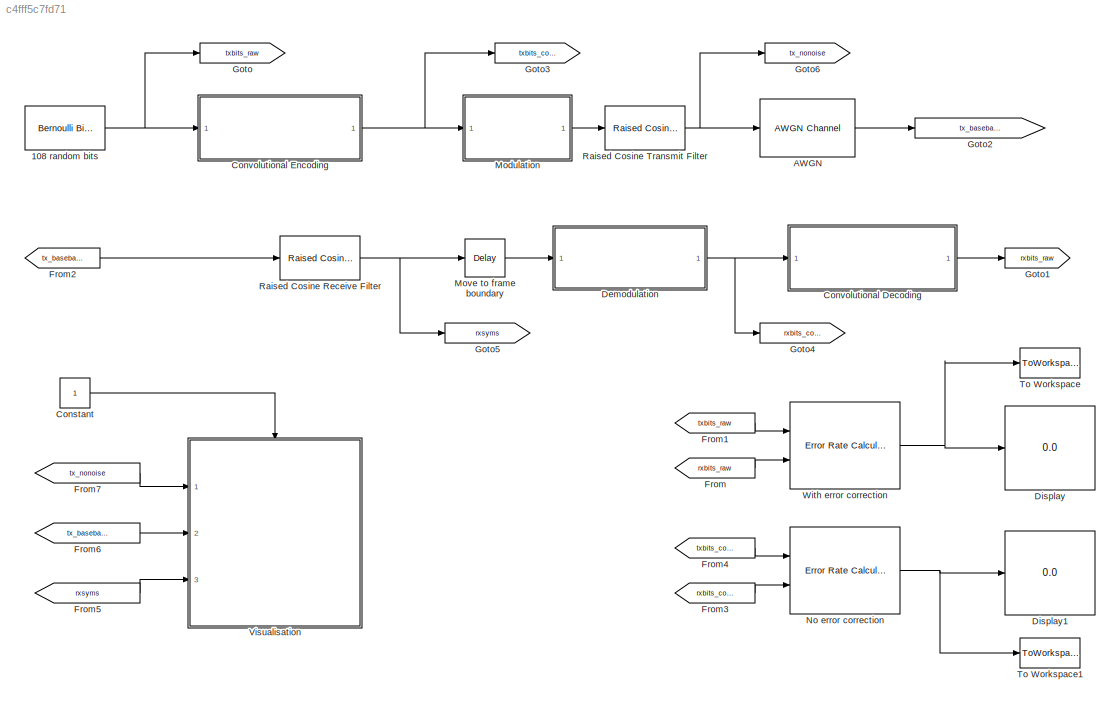
MODEL mdl_c4fff5c7fd71
KIND model
CONFIG AbsTol = auto
CONFIG EnableMultiTasking = off
CONFIG FixedStep = auto
CONFIG MaxStep = auto
CONFIG MinStep = auto
CONFIG RelTol = 1e-3
CONFIG SampleTimeConstraint = Unconstrained
CONFIG SolverName = FixedStepDiscrete
CONFIG StartTime = 0.0
CONFIG StopTime = 10
BLOCK [Reference] 108 random bits  REF=commrandsrc2/Bernoulli Binary
Generator
  Ports = [0, 1]
  SourceBlock = commrandsrc2/Bernoulli Binary\nGenerator
  SourceProductBaseCode = CM
  SourceType = Bernoulli Binary Generator
BLOCK [Reference] AWGN  REF=commchan3/AWGN
Channel
  Ports = [1, 1]
  SourceBlock = commchan3/AWGN\nChannel
  SourceProductBaseCode = CM
  SourceType = AWGN Channel
  UserDataPersistent = on
BLOCK [Constant] Constant
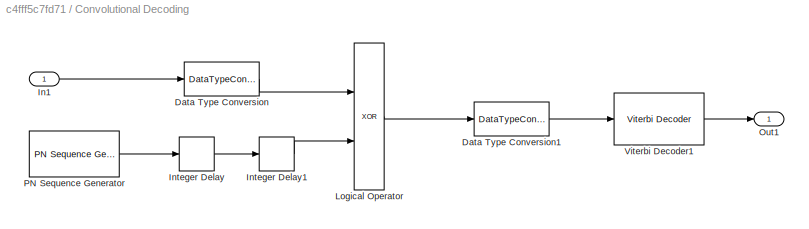
BLOCK [SubSystem] Convolutional Decoding
  Ports = [1, 1]
  RequestExecContextInheritance = off
BLOCK [DataTypeConversion] Convolutional Decoding/Data Type Conversion
  OutDataTypeStr = boolean
  RndMeth = Floor
  SaturateOnIntegerOverflow = off
BLOCK [DataTypeConversion] Convolutional Decoding/Data Type Conversion1
  OutDataTypeStr = double
  RndMeth = Floor
  SaturateOnIntegerOverflow = off
BLOCK [Inport] Convolutional Decoding/In1
BLOCK [Delay] Convolutional Decoding/Integer Delay
  DelayLength = 215
  InitialCondition = 0
  InputPortMap = u0
  Ports = [1, 1]
  UserDataPersistent = on
BLOCK [Delay] Convolutional Decoding/Integer Delay1
  DelayLength = 1
  InitialCondition = 0
  InputPortMap = u0
  Ports = [1, 1]
  UserDataPersistent = on
BLOCK [Logic] Convolutional Decoding/Logical Operator
  AllPortsSameDT = off
  Operator = XOR
  OutDataTypeStr = boolean
  Ports = [2, 1]
BLOCK [Outport] Convolutional Decoding/Out1
BLOCK [Reference] Convolutional Decoding/PN Sequence Generator  REF=commseqgen3/PN Sequence
Generator
  Ports = [0, 1]
  SourceBlock = commseqgen3/PN Sequence\nGenerator
  SourceProductBaseCode = CM
  SourceType = PN Sequence Generator
BLOCK [Reference] Convolutional Decoding/Viterbi Decoder1  REF=commcnvcod2/Viterbi Decoder
  Ports = [1, 1]
  SourceBlock = commcnvcod2/Viterbi Decoder
  SourceProductBaseCode = CM
  SourceType = Viterbi Decoder
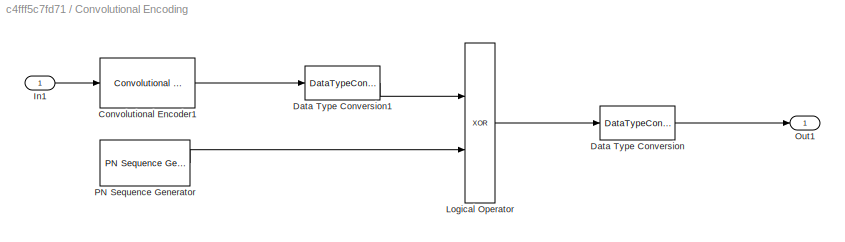
BLOCK [SubSystem] Convolutional Encoding
  Ports = [1, 1]
  RequestExecContextInheritance = off
BLOCK [Reference] Convolutional Encoding/Convolutional Encoder1  REF=commcnvcod2/Convolutional
Encoder
  Ports = [1, 1]
  SourceBlock = commcnvcod2/Convolutional\nEncoder
  SourceProductBaseCode = CM
  SourceType = Convolutional Encoder
BLOCK [DataTypeConversion] Convolutional Encoding/Data Type Conversion
  OutDataTypeStr = double
  RndMeth = Floor
  SaturateOnIntegerOverflow = off
BLOCK [DataTypeConversion] Convolutional Encoding/Data Type Conversion1
  OutDataTypeStr = boolean
  RndMeth = Floor
  SaturateOnIntegerOverflow = off
BLOCK [Inport] Convolutional Encoding/In1
BLOCK [Logic] Convolutional Encoding/Logical Operator
  AllPortsSameDT = off
  Operator = XOR
  OutDataTypeStr = boolean
  Ports = [2, 1]
BLOCK [Outport] Convolutional Encoding/Out1
BLOCK [Reference] Convolutional Encoding/PN Sequence Generator  REF=commseqgen3/PN Sequence
Generator
  Ports = [0, 1]
  SourceBlock = commseqgen3/PN Sequence\nGenerator
  SourceProductBaseCode = CM
  SourceType = PN Sequence Generator
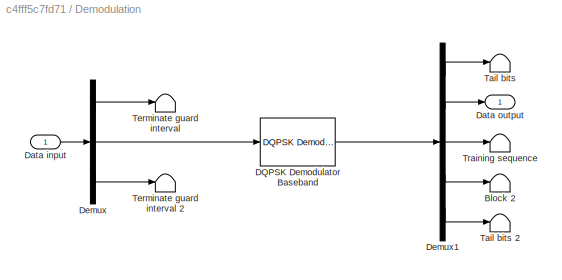
BLOCK [SubSystem] Demodulation
  Ports = [1, 1]
  RequestExecContextInheritance = off
BLOCK [Terminator] Demodulation/Block 2
BLOCK [Reference] Demodulation/DQPSK Demodulator Baseband  REF=commdigbbndpm3/DQPSK
Demodulator
Baseband
  Ports = [1, 1]
  SourceBlock = commdigbbndpm3/DQPSK\nDemodulator\nBaseband
  SourceProductBaseCode = CM
  SourceType = DQPSK Demodulator Baseband
BLOCK [Inport] Demodulation/Data input
BLOCK [Outport] Demodulation/Data output
BLOCK [Demux] Demodulation/Demux
  Outputs = [17 231 7]
  Ports = [1, 3]
BLOCK [Demux] Demodulation/Demux1
  Outputs = [4 216 22 216 4]
  Ports = [1, 5]
BLOCK [Terminator] Demodulation/Tail bits
BLOCK [Terminator] Demodulation/Tail bits 2
BLOCK [Terminator] Demodulation/Terminate guard interval
BLOCK [Terminator] Demodulation/Terminate guard interval 2
BLOCK [Terminator] Demodulation/Training sequence
BLOCK [Display] Display
  Decimation = 1
  Ports = [1]
BLOCK [Display] Display1
  Decimation = 1
  Ports = [1]
BLOCK [From] From
  GotoTag = rxbits_raw
BLOCK [From] From1
  GotoTag = txbits_raw
BLOCK [From] From2
  GotoTag = tx_baseband
BLOCK [From] From3
  GotoTag = rxbits_conv
BLOCK [From] From4
  GotoTag = txbits_conv
BLOCK [From] From5
  GotoTag = rxsyms
BLOCK [From] From6
  GotoTag = tx_baseband
BLOCK [From] From7
  GotoTag = tx_nonoise
BLOCK [Goto] Goto
  GotoTag = txbits_raw
BLOCK [Goto] Goto1
  GotoTag = rxbits_raw
BLOCK [Goto] Goto2
  GotoTag = tx_baseband
BLOCK [Goto] Goto3
  GotoTag = txbits_conv
BLOCK [Goto] Goto4
  GotoTag = rxbits_conv
BLOCK [Goto] Goto5
  GotoTag = rxsyms
BLOCK [Goto] Goto6
  GotoTag = tx_nonoise
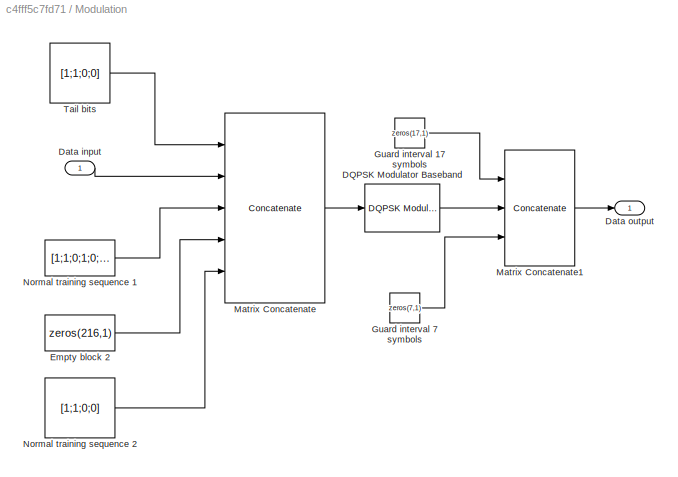
BLOCK [SubSystem] Modulation
  Ports = [1, 1]
  RequestExecContextInheritance = off
BLOCK [Reference] Modulation/DQPSK Modulator Baseband  REF=commdigbbndpm3/DQPSK
Modulator
Baseband
  Ports = [1, 1]
  SourceBlock = commdigbbndpm3/DQPSK\nModulator\nBaseband
  SourceProductBaseCode = CM
  SourceType = DQPSK Modulator Baseband
BLOCK [Inport] Modulation/Data input
BLOCK [Outport] Modulation/Data output
BLOCK [Constant] Modulation/Empty block 2
  SamplingMode = Frame based
  Value = zeros(216,1)
  VectorParams1D = off
BLOCK [Constant] Modulation/Guard interval 17 symbols
  SamplingMode = Frame based
  Value = zeros(17,1)
  VectorParams1D = off
BLOCK [Constant] Modulation/Guard interval 7 symbols
  SamplingMode = Frame based
  Value = zeros(7,1)
  VectorParams1D = off
BLOCK [Concatenate] Modulation/Matrix Concatenate
  Mode = Multidimensional array
  NumInputs = 5
  Ports = [5, 1]
BLOCK [Concatenate] Modulation/Matrix Concatenate1
  Mode = Multidimensional array
  NumInputs = 3
  Ports = [3, 1]
BLOCK [Constant] Modulation/Normal training sequence 1
  SamplingMode = Frame based
  Value = [1;1;0;1;0;0;0;0;1;1;1;0;1;0;0;1;1;1;0;1;0;0]
  VectorParams1D = off
BLOCK [Constant] Modulation/Normal training sequence 2
  SamplingMode = Frame based
  Value = [1;1;0;0]
  VectorParams1D = off
BLOCK [Constant] Modulation/Tail bits
  SamplingMode = Frame based
  Value = [1;1;0;0]
  VectorParams1D = off
BLOCK [Delay] Move to frame boundary
  DelayLength = 255-8
  InputPortMap = u0
  Ports = [1, 1]
  UserDataPersistent = on
BLOCK [Reference] No error correction  REF=commsink2/Error Rate
Calculation
  Ports = [2, 1]
  SourceBlock = commsink2/Error Rate\nCalculation
  SourceProductBaseCode = CM
  SourceType = Error Rate Calculation
BLOCK [Reference] Raised Cosine Receive Filter  REF=commfilt2/Raised Cosine
Receive Filter
  Ports = [1, 1]
  SourceBlock = commfilt2/Raised Cosine\nReceive Filter
  SourceProductBaseCode = CM
  SourceType = Raised Cosine Receive Filter
  UserDataPersistent = on
BLOCK [Reference] Raised Cosine Transmit Filter  REF=commfilt2/Raised Cosine
Transmit Filter
  Ports = [1, 1]
  SourceBlock = commfilt2/Raised Cosine\nTransmit Filter
  SourceProductBaseCode = CM
  SourceType = Raised Cosine Transmit Filter
  UserDataPersistent = on
BLOCK [ToWorkspace] To Workspace
  MaxDataPoints = inf
  Ports = [1]
  SampleTime = -1
  SaveFormat = Structure
  VariableName = so_err_conv
BLOCK [ToWorkspace] To Workspace1
  MaxDataPoints = inf
  Ports = [1]
  SampleTime = -1
  SaveFormat = Structure
  VariableName = so_err_raw
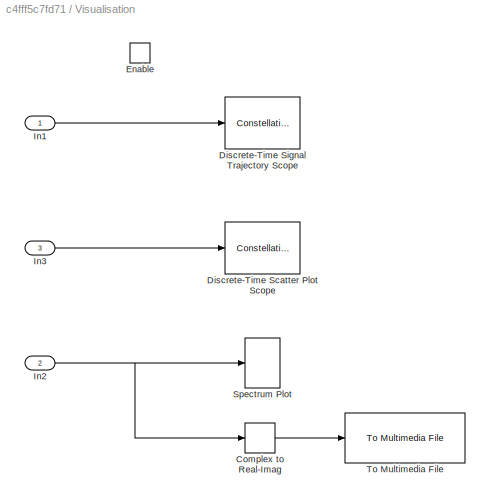
BLOCK [SubSystem] Visualisation
  Ports = [3, 0, 1]
  RequestExecContextInheritance = off
  TreatAsAtomicUnit = on
BLOCK [ComplexToRealImag] Visualisation/Complex to Real-Imag
  Output = Real
  Ports = [1, 1]
BLOCK [ConstellationDiagram] Visualisation/Discrete-Time Scatter Plot Scope
  FigPos = get(0,'defaultfigureposition');
  GraphicalSettings = {"GraphicalSettings":{"Style":{}}}
  Ports = [1]
  Tag = ScatterPlot
  WasSavedAsWebScope = on
BLOCK [ConstellationDiagram] Visualisation/Discrete-Time Signal Trajectory Scope
  FigPos = get(0,'defaultfigureposition');
  GraphicalSettings = {"Style":{"LineStyle":["-"]}}
  Ports = [1]
  SamplesPerSymbol = 8
  ScopeFrameLocation = window
  ShowTrajectory = on
  SymbolsToDisplay = 400
  SymbolsToDisplaySource = on
  Tag = SignalTrajectory
  Title = Signal Trajectory
  WasSavedAsWebScope = on
  WindowPosition = [105.000000,181.000000,560.000000,420.000000,]
  XLimits = 0.667665055503829
  YLimits = 0.657178779820385
BLOCK [EnablePort] Visualisation/Enable
  Ports = []
BLOCK [Inport] Visualisation/In1
BLOCK [Inport] Visualisation/In2
  Port = 2
BLOCK [Inport] Visualisation/In3
  Port = 3
BLOCK [SpectrumAnalyzer] Visualisation/Spectrum Plot
  Ports = [1]
  ScopeSpecificationString = spbscopes.SpectrumAnalyzerBlockCfg('CurrentConfiguration', extmgr.ConfigurationSet(extmgr.Configuration('Core','General UI',true),extmgr.Configuration('Core','Source UI',true),extmgr.Configuration('Sources','WiredSimulink',true),extmgr.Configuration('Visuals','Spectrum',true,'AxesProperties',struct('Color',{[0 0 0],[0 0 0]},'XColor',{[0.686274509803922 0.686274509803922 0.686274509803922],[0.68627...<+1788ch>
BLOCK [Reference] Visualisation/To Multimedia File  REF=dspvision/To Multimedia File
  Ports = [1]
  SourceBlock = dspvision/To Multimedia File
  SourceProductBaseCode = DS,HW,VP
  SourceType = To Multimedia File
BLOCK [Reference] With error correction  REF=commsink2/Error Rate
Calculation
  Ports = [2, 1]
  SourceBlock = commsink2/Error Rate\nCalculation
  SourceProductBaseCode = CM
  SourceType = Error Rate Calculation
NET 108 random bits:1 -> Convolutional Encoding:1, Goto:1
LINE AWGN:1 -> Goto2:1
LINE Constant:1 -> Visualisation:enable
LINE Convolutional Decoding/Data Type Conversion1:1 -> Convolutional Decoding/Viterbi Decoder1:1
LINE Convolutional Decoding/Data Type Conversion:1 -> Convolutional Decoding/Logical Operator:1
LINE Convolutional Decoding/In1:1 -> Convolutional Decoding/Data Type Conversion:1
LINE Convolutional Decoding/Integer Delay1:1 -> Convolutional Decoding/Logical Operator:2
LINE Convolutional Decoding/Integer Delay:1 -> Convolutional Decoding/Integer Delay1:1
LINE Convolutional Decoding/Logical Operator:1 -> Convolutional Decoding/Data Type Conversion1:1
LINE Convolutional Decoding/PN Sequence Generator:1 -> Convolutional Decoding/Integer Delay:1
LINE Convolutional Decoding/Viterbi Decoder1:1 -> Convolutional Decoding/Out1:1
LINE Convolutional Decoding:1 -> Goto1:1
LINE Convolutional Encoding/Convolutional Encoder1:1 -> Convolutional Encoding/Data Type Conversion1:1
LINE Convolutional Encoding/Data Type Conversion1:1 -> Convolutional Encoding/Logical Operator:1
LINE Convolutional Encoding/Data Type Conversion:1 -> Convolutional Encoding/Out1:1
LINE Convolutional Encoding/In1:1 -> Convolutional Encoding/Convolutional Encoder1:1
LINE Convolutional Encoding/Logical Operator:1 -> Convolutional Encoding/Data Type Conversion:1
LINE Convolutional Encoding/PN Sequence Generator:1 -> Convolutional Encoding/Logical Operator:2
NET Convolutional Encoding:1 -> Goto3:1, Modulation:1
LINE Demodulation/DQPSK Demodulator Baseband:1 -> Demodulation/Demux1:1
LINE Demodulation/Data input:1 -> Demodulation/Demux:1
LINE Demodulation/Demux1:1 -> Demodulation/Tail bits:1
LINE Demodulation/Demux1:2 -> Demodulation/Data output:1
LINE Demodulation/Demux1:3 -> Demodulation/Training sequence:1
LINE Demodulation/Demux1:4 -> Demodulation/Block 2:1
LINE Demodulation/Demux1:5 -> Demodulation/Tail bits 2:1
LINE Demodulation/Demux:1 -> Demodulation/Terminate guard interval:1
LINE Demodulation/Demux:2 -> Demodulation/DQPSK Demodulator Baseband:1
LINE Demodulation/Demux:3 -> Demodulation/Terminate guard interval 2:1
NET Demodulation:1 -> Convolutional Decoding:1, Goto4:1
LINE From1:1 -> With error correction:1
LINE From2:1 -> Raised Cosine Receive Filter:1
LINE From3:1 -> No error correction:2
LINE From4:1 -> No error correction:1
LINE From5:1 -> Visualisation:3
LINE From6:1 -> Visualisation:2
LINE From7:1 -> Visualisation:1
LINE From:1 -> With error correction:2
LINE Modulation/DQPSK Modulator Baseband:1 -> Modulation/Matrix Concatenate1:2
LINE Modulation/Data input:1 -> Modulation/Matrix Concatenate:2
LINE Modulation/Empty block 2:1 -> Modulation/Matrix Concatenate:4
LINE Modulation/Guard interval 17 symbols:1 -> Modulation/Matrix Concatenate1:1
LINE Modulation/Guard interval 7 symbols:1 -> Modulation/Matrix Concatenate1:3
LINE Modulation/Matrix Concatenate1:1 -> Modulation/Data output:1
LINE Modulation/Matrix Concatenate:1 -> Modulation/DQPSK Modulator Baseband:1
LINE Modulation/Normal training sequence 1:1 -> Modulation/Matrix Concatenate:3
LINE Modulation/Normal training sequence 2:1 -> Modulation/Matrix Concatenate:5
LINE Modulation/Tail bits:1 -> Modulation/Matrix Concatenate:1
LINE Modulation:1 -> Raised Cosine Transmit Filter:1
LINE Move to frame boundary:1 -> Demodulation:1
NET No error correction:1 -> Display1:1, To Workspace1:1
NET Raised Cosine Receive Filter:1 -> Goto5:1, Move to frame boundary:1
NET Raised Cosine Transmit Filter:1 -> AWGN:1, Goto6:1
LINE Visualisation/Complex to Real-Imag:1 -> Visualisation/To Multimedia File:1
LINE Visualisation/In1:1 -> Visualisation/Discrete-Time Signal Trajectory Scope:1
NET Visualisation/In2:1 -> Visualisation/Complex to Real-Imag:1, Visualisation/Spectrum Plot:1
LINE Visualisation/In3:1 -> Visualisation/Discrete-Time Scatter Plot Scope:1
NET With error correction:1 -> Display:1, To Workspace:1
note: NET lines group one-source signal fan-out (src -> all destinations, sorted); 1:1 wires keep LINE
